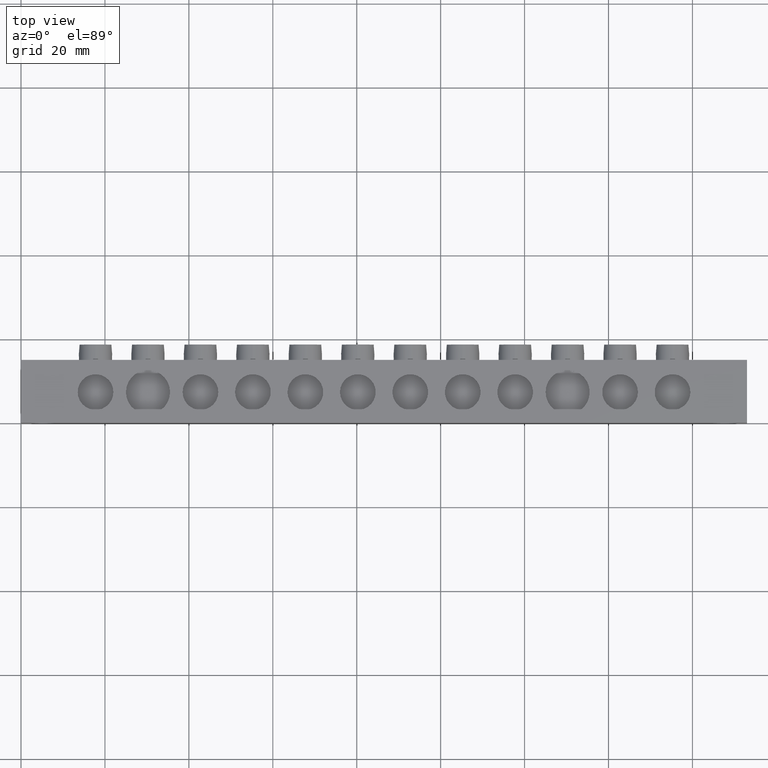
[diagram: clean part render]
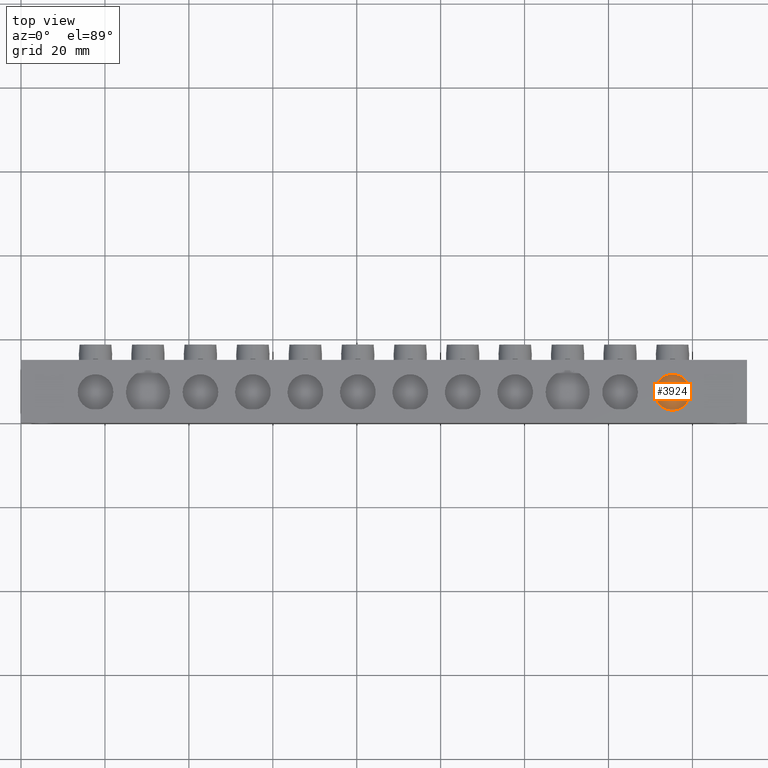
[diagram: same view with one face highlighted and labeled with its STEP entity id]
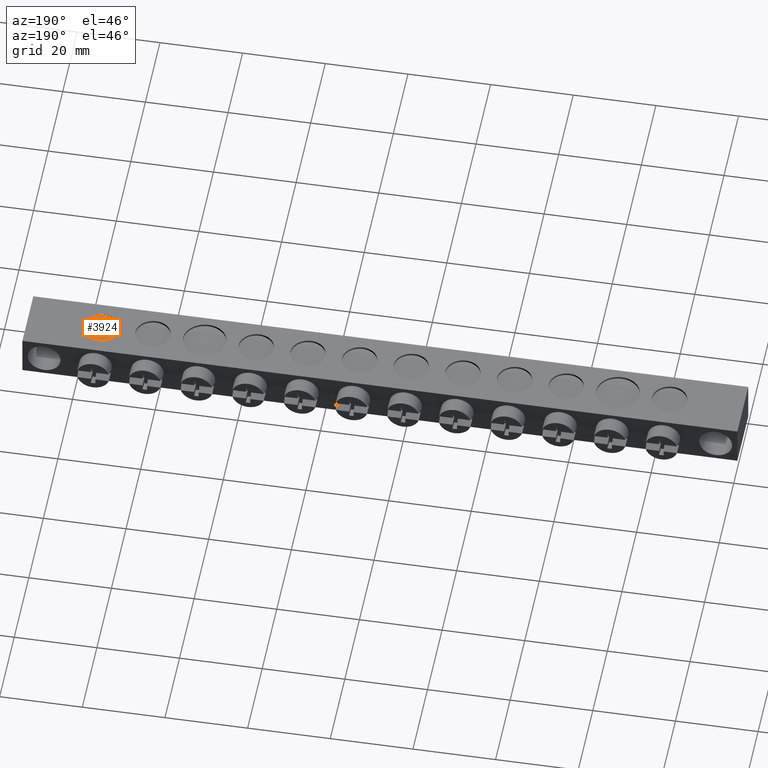
[diagram: same view with one face highlighted and labeled with its STEP entity id]
A machine part, top view. The second image highlights one B-rep face of the part: STEP entity #3924.
A second angle (auxiliary view) of the same face is appended — the face is thin or edge-on in the first view.
In plain terms, the highlighted planar face has unit normal (0, 0, -1).
Its self-contained STEP definition (entity closure, byte-faithful):
#425 = DIRECTION ( 'NONE',  ( 1.000000000000000000, 0.0000000000000000000, 0.0000000000000000000 ) ) ;
#439 = CARTESIAN_POINT ( 'NONE',  ( 155.2500000000000000, 7.299999999999998900, -0.5000000000000004400 ) ) ;
#441 = DIRECTION ( 'NONE',  ( 0.0000000000000000000, 0.0000000000000000000, 1.000000000000000000 ) ) ;
#858 = FACE_OUTER_BOUND ( 'NONE', #6908, .T. ) ;
#973 = CARTESIAN_POINT ( 'NONE',  ( 161.8674712474905800, 0.5000000000000038900, -0.5000000000000000000 ) ) ;
#1226 = DIRECTION ( 'NONE',  ( 0.0000000000000000000, 0.0000000000000000000, -1.000000000000000000 ) ) ;
#1276 = DIRECTION ( 'NONE',  ( -1.000000000000000000, 0.0000000000000000000, -0.0000000000000000000 ) ) ;
#1662 = PLANE ( 'NONE',  #3455 ) ;
#1792 = AXIS2_PLACEMENT_3D ( 'NONE', #439, #441, #425 ) ;
#1812 = CIRCLE ( 'NONE', #1792, 4.250000000000003600 ) ;
#2944 = CIRCLE ( 'NONE', #2948, 4.250000000000003600 ) ;
#2948 = AXIS2_PLACEMENT_3D ( 'NONE', #4493, #4503, #4513 ) ;
#3455 = AXIS2_PLACEMENT_3D ( 'NONE', #973, #1226, #1276 ) ;
#3924 = ADVANCED_FACE ( 'NONE', ( #858 ), #1662, .F. ) ;
#4321 = EDGE_CURVE ( 'NONE', #7497, #7537, #2944, .T. ) ;
#4493 = CARTESIAN_POINT ( 'NONE',  ( 155.2500000000000000, 7.299999999999998900, -0.5000000000000004400 ) ) ;
#4503 = DIRECTION ( 'NONE',  ( 0.0000000000000000000, 0.0000000000000000000, 1.000000000000000000 ) ) ;
#4513 = DIRECTION ( 'NONE',  ( 1.000000000000000000, 0.0000000000000000000, 0.0000000000000000000 ) ) ;
#4931 = ORIENTED_EDGE ( 'NONE', *, *, #8229, .T. ) ;
#4945 = ORIENTED_EDGE ( 'NONE', *, *, #4321, .T. ) ;
#6908 = EDGE_LOOP ( 'NONE', ( #4931, #4945 ) ) ;
#7497 = VERTEX_POINT ( 'NONE', #7915 ) ;
#7537 = VERTEX_POINT ( 'NONE', #7954 ) ;
#7915 = CARTESIAN_POINT ( 'NONE',  ( 151.0000000000000000, 7.299999999999999800, -0.5000000000000004400 ) ) ;
#7954 = CARTESIAN_POINT ( 'NONE',  ( 159.5000000000000000, 7.299999999999998900, -0.5000000000000004400 ) ) ;
#8229 = EDGE_CURVE ( 'NONE', #7537, #7497, #1812, .T. ) ;